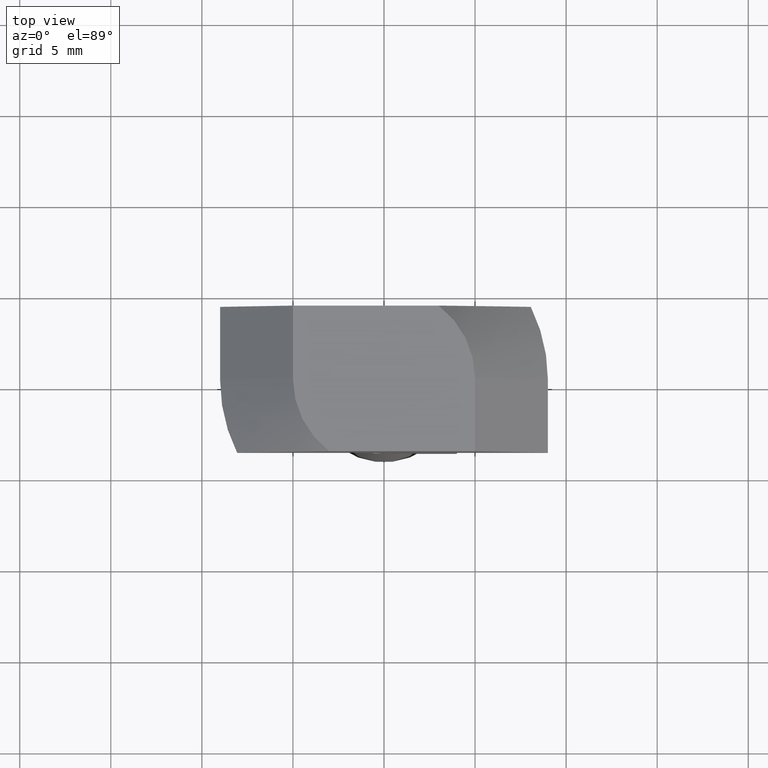
[diagram: clean part render]
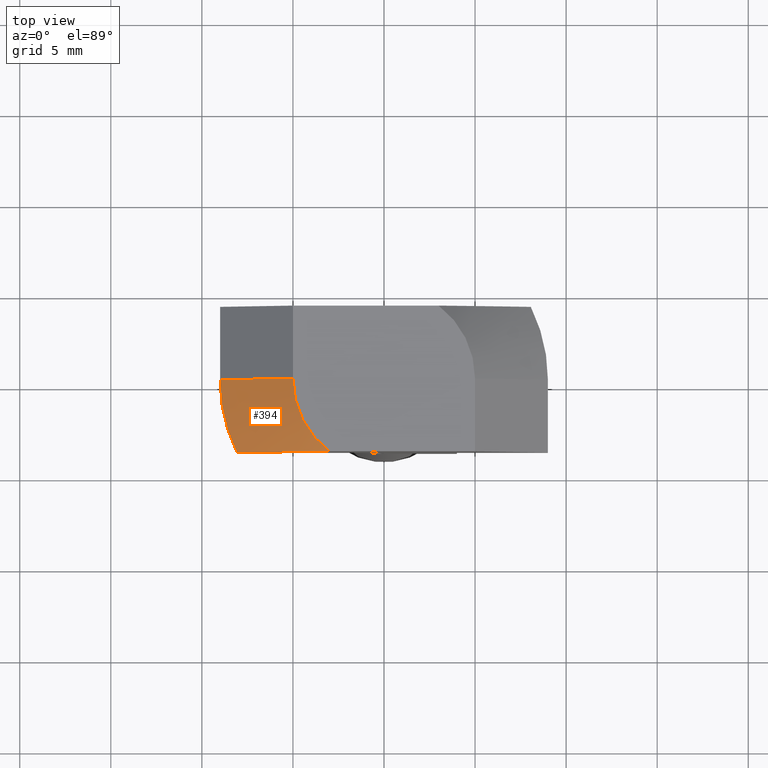
[diagram: same view with one face highlighted and labeled with its STEP entity id]
A machine part, top view. The second image highlights one B-rep face of the part: STEP entity #394.
In plain terms, the highlighted conical surface has half-angle 45 deg.
Its self-contained STEP definition (entity closure, byte-faithful):
#16=(
BOUNDED_CURVE()
B_SPLINE_CURVE(2,(#670,#671,#672),.UNSPECIFIED.,.F.,.F.)
B_SPLINE_CURVE_WITH_KNOTS((3,3),(0.,0.645810133031388),.UNSPECIFIED.)
CURVE()
GEOMETRIC_REPRESENTATION_ITEM()
RATIONAL_B_SPLINE_CURVE((1.,1.07257323111155,1.))
REPRESENTATION_ITEM('')
);
#52=FACE_OUTER_BOUND('',#76,.T.);
#76=EDGE_LOOP('',(#329,#330,#331,#332));
#111=LINE('',#675,#149);
#149=VECTOR('',#554,10.);
#173=CIRCLE('',#453,9.);
#174=CIRCLE('',#455,5.);
#202=VERTEX_POINT('',#663);
#203=VERTEX_POINT('',#665);
#204=VERTEX_POINT('',#669);
#205=VERTEX_POINT('',#673);
#250=EDGE_CURVE('',#203,#202,#173,.T.);
#252=EDGE_CURVE('',#204,#202,#16,.T.);
#253=EDGE_CURVE('',#205,#204,#174,.T.);
#254=EDGE_CURVE('',#205,#203,#111,.T.);
#329=ORIENTED_EDGE('',*,*,#252,.F.);
#330=ORIENTED_EDGE('',*,*,#253,.F.);
#331=ORIENTED_EDGE('',*,*,#254,.T.);
#332=ORIENTED_EDGE('',*,*,#250,.T.);
#378=CONICAL_SURFACE('',#454,7.,0.785398163397448);
#394=ADVANCED_FACE('',(#52),#378,.T.);
#453=AXIS2_PLACEMENT_3D('',#666,#547,#548);
#454=AXIS2_PLACEMENT_3D('',#668,#550,#551);
#455=AXIS2_PLACEMENT_3D('',#674,#552,#553);
#547=DIRECTION('center_axis',(-1.48906415739385E-16,-1.48906415739385E-16,
1.));
#548=DIRECTION('ref_axis',(-1.,-1.2335811384724E-16,-1.2335811384724E-16));
#550=DIRECTION('center_axis',(0.,0.,-1.));
#551=DIRECTION('ref_axis',(-1.,0.,0.));
#552=DIRECTION('center_axis',(2.04289535270664E-17,0.,1.));
#553=DIRECTION('ref_axis',(-1.,0.,0.));
#554=DIRECTION('',(-0.707106781186548,0.,-0.707106781186548));
#663=CARTESIAN_POINT('',(-8.06225774829855,-4.,-4.));
#665=CARTESIAN_POINT('',(-9.,0.,-4.));
#666=CARTESIAN_POINT('Origin',(1.11022302462516E-15,1.11022302462516E-15,
-4.));
#668=CARTESIAN_POINT('Origin',(0.,0.,-2.));
#669=CARTESIAN_POINT('',(-3.,-4.,3.92523114670944E-16));
#670=CARTESIAN_POINT('Ctrl Pts',(-3.,-4.,2.77555756156289E-16));
#671=CARTESIAN_POINT('Ctrl Pts',(-4.80794919582092,-4.,-1.08476951749255));
#672=CARTESIAN_POINT('Ctrl Pts',(-8.06225774829855,-4.,-4.));
#673=CARTESIAN_POINT('',(-5.,0.,0.));
#674=CARTESIAN_POINT('Origin',(0.,0.,2.77555756156289E-16));
#675=CARTESIAN_POINT('',(-7.,0.,-2.));